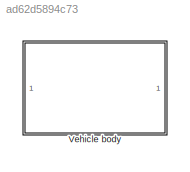
MODEL slx_ad62d5894c73
KIND library
CONFIG AbsTol = auto
CONFIG EnableMultiTasking = off
CONFIG FixedStep = auto
CONFIG MaxStep = auto
CONFIG MinStep = auto
CONFIG RelTol = 1e-3
CONFIG SampleTimeConstraint = Unconstrained
CONFIG SolverName = VariableStepAuto
CONFIG StartTime = 0.0
CONFIG StopTime = 10.0
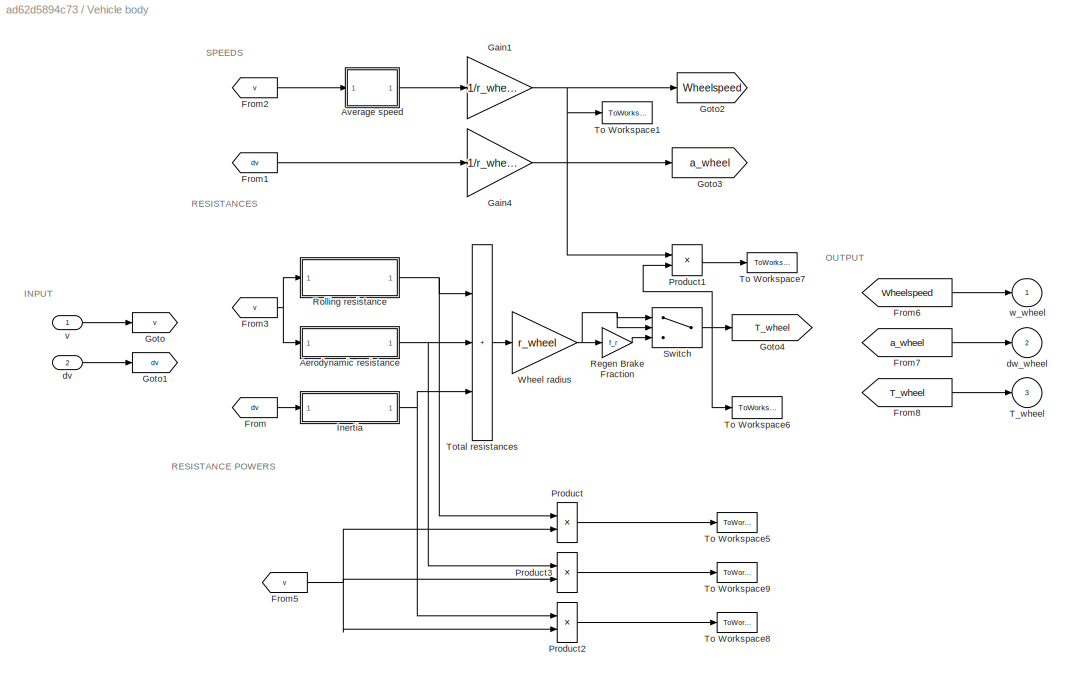
BLOCK [SubSystem] Vehicle body
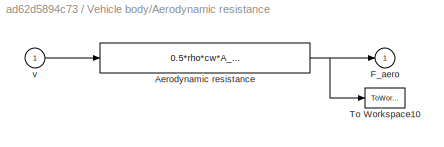
BLOCK [SubSystem] Vehicle body/Aerodynamic resistance
BLOCK [Fcn] Vehicle body/Aerodynamic resistance/Aerodynamic resistance
  Expr = 0.5*rho*cw*A_f*u^2
BLOCK [Outport] Vehicle body/Aerodynamic resistance/F_aero
  InitialOutput = 0
BLOCK [ToWorkspace] Vehicle body/Aerodynamic resistance/To Workspace10
  MaxDataPoints = inf
  NameLocation = top
  SampleTime = -1
  VariableName = F_aero
BLOCK [Inport] Vehicle body/Aerodynamic resistance/v
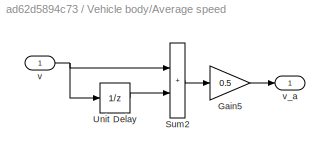
BLOCK [SubSystem] Vehicle body/Average speed
BLOCK [Gain] Vehicle body/Average speed/Gain5
  Gain = 0.5
  OutDataTypeStr = Inherit: Same as input
  ParamDataTypeStr = Inherit: Same as input
  SaturateOnIntegerOverflow = on
BLOCK [Sum] Vehicle body/Average speed/Sum2
  IconShape = rectangular
  InputSameDT = on
  OutDataTypeStr = Inherit: Same as first input
  SaturateOnIntegerOverflow = on
BLOCK [UnitDelay] Vehicle body/Average speed/Unit Delay
  SampleTime = h
BLOCK [Inport] Vehicle body/Average speed/v
BLOCK [Outport] Vehicle body/Average speed/v_a
  InitialOutput = 0
BLOCK [From] Vehicle body/From
  GotoTag = dv
BLOCK [From] Vehicle body/From1
  GotoTag = dv
BLOCK [From] Vehicle body/From2
  GotoTag = v
BLOCK [From] Vehicle body/From3
  GotoTag = v
BLOCK [From] Vehicle body/From5
  GotoTag = v
BLOCK [From] Vehicle body/From6
  GotoTag = Wheelspeed
BLOCK [From] Vehicle body/From7
  GotoTag = a_wheel
BLOCK [From] Vehicle body/From8
  GotoTag = T_wheel
BLOCK [Gain] Vehicle body/Gain1
  Gain = 1/r_wheel
  OutDataTypeStr = Inherit: Same as input
  ParamDataTypeStr = Inherit: Same as input
  SaturateOnIntegerOverflow = on
BLOCK [Gain] Vehicle body/Gain4
  Gain = 1/r_wheel
  OutDataTypeStr = Inherit: Same as input
  ParamDataTypeStr = Inherit: Same as input
  SaturateOnIntegerOverflow = on
BLOCK [Goto] Vehicle body/Goto
  GotoTag = v
BLOCK [Goto] Vehicle body/Goto1
  GotoTag = dv
BLOCK [Goto] Vehicle body/Goto2
  GotoTag = Wheelspeed
BLOCK [Goto] Vehicle body/Goto3
  GotoTag = a_wheel
BLOCK [Goto] Vehicle body/Goto4
  GotoTag = T_wheel
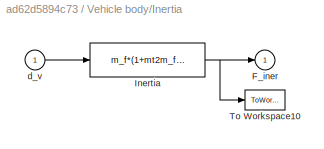
BLOCK [SubSystem] Vehicle body/Inertia
BLOCK [Outport] Vehicle body/Inertia/F_iner
  InitialOutput = 0
BLOCK [Fcn] Vehicle body/Inertia/Inertia
  Expr = m_f*(1+mt2m_f)*u/h
BLOCK [ToWorkspace] Vehicle body/Inertia/To Workspace10
  MaxDataPoints = inf
  NameLocation = top
  SampleTime = -1
  VariableName = F_iner
BLOCK [Inport] Vehicle body/Inertia/d_v
BLOCK [Product] Vehicle body/Product
  InputSameDT = on
  OutDataTypeStr = Inherit: Same as first input
  RndMeth = Zero
  SaturateOnIntegerOverflow = on
BLOCK [Product] Vehicle body/Product1
BLOCK [Product] Vehicle body/Product2
  InputSameDT = on
  OutDataTypeStr = Inherit: Same as first input
  RndMeth = Zero
  SaturateOnIntegerOverflow = on
BLOCK [Product] Vehicle body/Product3
  InputSameDT = on
  OutDataTypeStr = Inherit: Same as first input
  RndMeth = Zero
  SaturateOnIntegerOverflow = on
BLOCK [Gain] Vehicle body/Regen Brake Fraction
  Gain = f_r
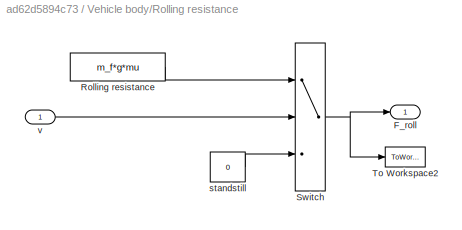
BLOCK [SubSystem] Vehicle body/Rolling resistance
BLOCK [Outport] Vehicle body/Rolling resistance/F_roll
BLOCK [Constant] Vehicle body/Rolling resistance/Rolling resistance
  Value = m_f*g*mu
BLOCK [Switch] Vehicle body/Rolling resistance/Switch
  Criteria = u2 > Threshold
  InputSameDT = off
  SaturateOnIntegerOverflow = off
  Threshold = eps
BLOCK [ToWorkspace] Vehicle body/Rolling resistance/To Workspace2
  MaxDataPoints = inf
  NameLocation = top
  SampleTime = -1
  VariableName = F_roll
BLOCK [Constant] Vehicle body/Rolling resistance/standstill
  Value = 0
BLOCK [Inport] Vehicle body/Rolling resistance/v
BLOCK [Switch] Vehicle body/Switch
  Criteria = u2 > Threshold
  InputSameDT = off
  SaturateOnIntegerOverflow = off
BLOCK [Outport] Vehicle body/T_wheel
  InitialOutput = 0
  Port = 3
BLOCK [ToWorkspace] Vehicle body/To Workspace1
  MaxDataPoints = inf
  NameLocation = top
  SampleTime = -1
  VariableName = w_wheel
BLOCK [ToWorkspace] Vehicle body/To Workspace5
  MaxDataPoints = inf
  NameLocation = top
  SampleTime = -1
  VariableName = P_roll
BLOCK [ToWorkspace] Vehicle body/To Workspace6
  MaxDataPoints = inf
  NameLocation = top
  SampleTime = -1
  VariableName = T_wheel
BLOCK [ToWorkspace] Vehicle body/To Workspace7
  MaxDataPoints = inf
  NameLocation = top
  SampleTime = -1
  VariableName = P_wheel
BLOCK [ToWorkspace] Vehicle body/To Workspace8
  MaxDataPoints = inf
  NameLocation = top
  SampleTime = -1
  VariableName = P_iner
BLOCK [ToWorkspace] Vehicle body/To Workspace9
  MaxDataPoints = inf
  NameLocation = top
  SampleTime = -1
  VariableName = P_aero
BLOCK [Sum] Vehicle body/Total resistances
  IconShape = rectangular
  InputSameDT = on
  Inputs = +++
  OutDataTypeStr = Inherit: Same as first input
  SaturateOnIntegerOverflow = on
BLOCK [Gain] Vehicle body/Wheel radius
  Gain = r_wheel
  OutDataTypeStr = Inherit: Same as input
  ParamDataTypeStr = Inherit: Same as input
  SaturateOnIntegerOverflow = on
BLOCK [Inport] Vehicle body/dv
  Port = 2
BLOCK [Outport] Vehicle body/dw_wheel
  InitialOutput = 0
  Port = 2
BLOCK [Inport] Vehicle body/v
BLOCK [Outport] Vehicle body/w_wheel
  InitialOutput = 0
ANNOTATION Vehicle body: INPUT
ANNOTATION Vehicle body: OUTPUT
ANNOTATION Vehicle body: RESISTANCE POWERS
ANNOTATION Vehicle body: RESISTANCES
ANNOTATION Vehicle body: SPEEDS
NET Vehicle body/Aerodynamic resistance/Aerodynamic resistance:1 -> Vehicle body/Aerodynamic resistance/F_aero:1, Vehicle body/Aerodynamic resistance/To Workspace10:1
LINE Vehicle body/Aerodynamic resistance/v:1 -> Vehicle body/Aerodynamic resistance/Aerodynamic resistance:1
NET Vehicle body/Aerodynamic resistance:1 -> Vehicle body/Product3:1, Vehicle body/Total resistances:2
LINE Vehicle body/Average speed/Gain5:1 -> Vehicle body/Average speed/v_a:1
LINE Vehicle body/Average speed/Sum2:1 -> Vehicle body/Average speed/Gain5:1
LINE Vehicle body/Average speed/Unit Delay:1 -> Vehicle body/Average speed/Sum2:2
NET Vehicle body/Average speed/v:1 -> Vehicle body/Average speed/Sum2:1, Vehicle body/Average speed/Unit Delay:1
LINE Vehicle body/Average speed:1 -> Vehicle body/Gain1:1
LINE Vehicle body/From1:1 -> Vehicle body/Gain4:1
LINE Vehicle body/From2:1 -> Vehicle body/Average speed:1
NET Vehicle body/From3:1 -> Vehicle body/Aerodynamic resistance:1, Vehicle body/Rolling resistance:1
NET Vehicle body/From5:1 -> Vehicle body/Product2:2, Vehicle body/Product3:2, Vehicle body/Product:2
LINE Vehicle body/From6:1 -> Vehicle body/w_wheel:1
LINE Vehicle body/From7:1 -> Vehicle body/dw_wheel:1
LINE Vehicle body/From8:1 -> Vehicle body/T_wheel:1
LINE Vehicle body/From:1 -> Vehicle body/Inertia:1
NET Vehicle body/Gain1:1 -> Vehicle body/Goto2:1, Vehicle body/Product1:1, Vehicle body/To Workspace1:1
LINE Vehicle body/Gain4:1 -> Vehicle body/Goto3:1
NET Vehicle body/Inertia/Inertia:1 -> Vehicle body/Inertia/F_iner:1, Vehicle body/Inertia/To Workspace10:1
LINE Vehicle body/Inertia/d_v:1 -> Vehicle body/Inertia/Inertia:1
NET Vehicle body/Inertia:1 -> Vehicle body/Product2:1, Vehicle body/Total resistances:3
LINE Vehicle body/Product1:1 -> Vehicle body/To Workspace7:1
LINE Vehicle body/Product2:1 -> Vehicle body/To Workspace8:1
LINE Vehicle body/Product3:1 -> Vehicle body/To Workspace9:1
LINE Vehicle body/Product:1 -> Vehicle body/To Workspace5:1
LINE Vehicle body/Regen Brake Fraction:1 -> Vehicle body/Switch:3
LINE Vehicle body/Rolling resistance/Rolling resistance:1 -> Vehicle body/Rolling resistance/Switch:1
NET Vehicle body/Rolling resistance/Switch:1 -> Vehicle body/Rolling resistance/F_roll:1, Vehicle body/Rolling resistance/To Workspace2:1
LINE Vehicle body/Rolling resistance/standstill:1 -> Vehicle body/Rolling resistance/Switch:3
LINE Vehicle body/Rolling resistance/v:1 -> Vehicle body/Rolling resistance/Switch:2
NET Vehicle body/Rolling resistance:1 -> Vehicle body/Product:1, Vehicle body/Total resistances:1
NET Vehicle body/Switch:1 -> Vehicle body/Goto4:1, Vehicle body/Product1:2, Vehicle body/To Workspace6:1
LINE Vehicle body/Total resistances:1 -> Vehicle body/Wheel radius:1
NET Vehicle body/Wheel radius:1 -> Vehicle body/Regen Brake Fraction:1, Vehicle body/Switch:1, Vehicle body/Switch:2
LINE Vehicle body/dv:1 -> Vehicle body/Goto1:1
LINE Vehicle body/v:1 -> Vehicle body/Goto:1
note: NET lines group one-source signal fan-out (src -> all destinations, sorted); 1:1 wires keep LINE
